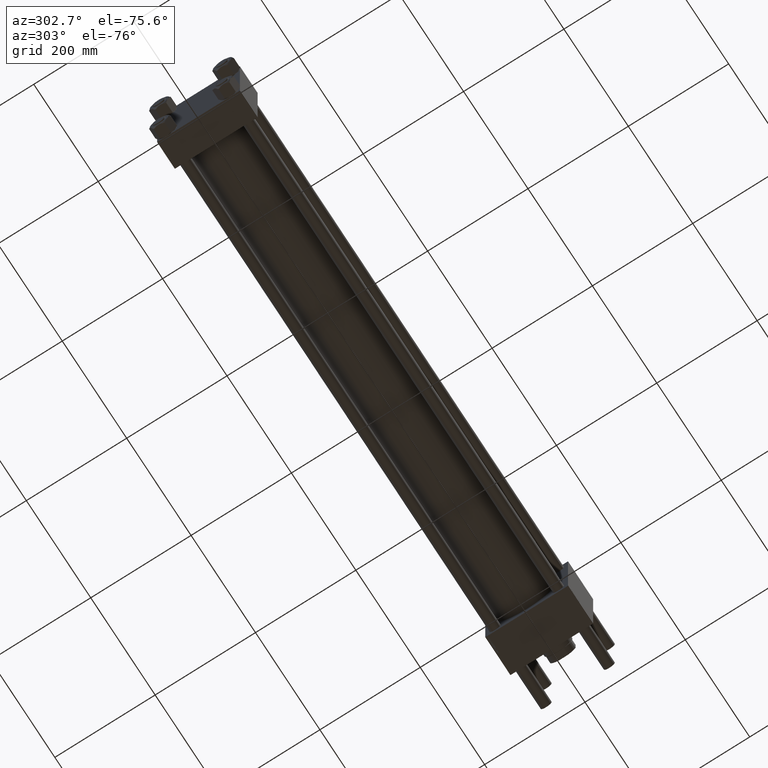
[diagram: clean part render]
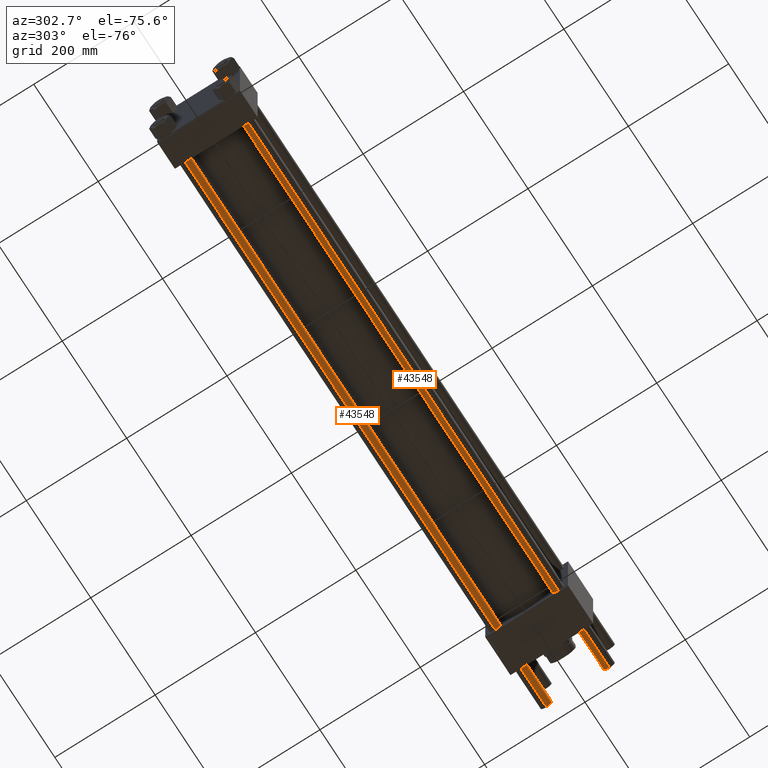
[diagram: same view with one multi-face feature highlighted, each face labeled with its STEP entity id]
A machine part, auxiliary view. The highlighted faces form ONE feature: a constant-radius fillet chain: 2 tangent blend faces with common blend radius 11 mm. The faces share edges in the B-rep.
Their STEP definitions:
[1] entity #43548 (Cylinder):
#1288 = EDGE_CURVE ( 'NONE', #33157, #26490, #50292, .T. ) ;
#2960 = CYLINDRICAL_SURFACE ( 'NONE', #44124, 11.00000000000000000 ) ;
#4113 = FACE_OUTER_BOUND ( 'NONE', #35522, .T. ) ;
#5757 = DIRECTION ( 'NONE',  ( -0.000000000000000000, -0.000000000000000000, -1.000000000000000000 ) ) ;
#6046 = EDGE_CURVE ( 'NONE', #6074, #27453, #24613, .T. ) ;
#6074 = VERTEX_POINT ( 'NONE', #12900 ) ;
#9520 = CARTESIAN_POINT ( 'NONE',  ( 11.00000000000000000, 1.347111479062088405E-15, 1204.000000000000000 ) ) ;
#12900 = CARTESIAN_POINT ( 'NONE',  ( -11.00000000000000000, 0.000000000000000000, 0.5000000000001669775 ) ) ;
#13047 = ORIENTED_EDGE ( 'NONE', *, *, #1288, .T. ) ;
#18404 = CARTESIAN_POINT ( 'NONE',  ( 0.000000000000000000, 0.000000000000000000, 0.5000000000001669775 ) ) ;
#21490 = DIRECTION ( 'NONE',  ( -1.000000000000000000, 0.000000000000000000, 0.000000000000000000 ) ) ;
#21594 = DIRECTION ( 'NONE',  ( 1.000000000000000000, 0.000000000000000000, 0.000000000000000000 ) ) ;
#24613 = CIRCLE ( 'NONE', #44927, 11.00000000000000000 ) ;
#26490 = VERTEX_POINT ( 'NONE', #47033 ) ;
#26971 = CARTESIAN_POINT ( 'NONE',  ( 11.00000000000000000, 1.347111479062088405E-15, 1203.499999999999545 ) ) ;
#27453 = VERTEX_POINT ( 'NONE', #31657 ) ;
#29598 = DIRECTION ( 'NONE',  ( -0.000000000000000000, -0.000000000000000000, -1.000000000000000000 ) ) ;
#30205 = ORIENTED_EDGE ( 'NONE', *, *, #37837, .T. ) ;
#31657 = CARTESIAN_POINT ( 'NONE',  ( 11.00000000000000000, 1.347111479062088405E-15, 0.5000000000001669775 ) ) ;
#33157 = VERTEX_POINT ( 'NONE', #26971 ) ;
#33489 = EDGE_CURVE ( 'NONE', #33157, #27453, #36451, .T. ) ;
#34799 = DIRECTION ( 'NONE',  ( 0.000000000000000000, 0.000000000000000000, -1.000000000000000000 ) ) ;
#35522 = EDGE_LOOP ( 'NONE', ( #56523, #13047, #30205, #36609 ) ) ;
#36451 = LINE ( 'NONE', #9520, #55077 ) ;
#36609 = ORIENTED_EDGE ( 'NONE', *, *, #6046, .T. ) ;
#37837 = EDGE_CURVE ( 'NONE', #26490, #6074, #52085, .T. ) ;
#41071 = AXIS2_PLACEMENT_3D ( 'NONE', #52724, #34799, #48934 ) ;
#43548 = ADVANCED_FACE ( 'NONE', ( #4113 ), #2960, .T. ) ;
#44124 = AXIS2_PLACEMENT_3D ( 'NONE', #47510, #29598, #21490 ) ;
#44927 = AXIS2_PLACEMENT_3D ( 'NONE', #18404, #49056, #21594 ) ;
#47033 = CARTESIAN_POINT ( 'NONE',  ( -11.00000000000000000, 0.000000000000000000, 1203.499999999999545 ) ) ;
#47510 = CARTESIAN_POINT ( 'NONE',  ( 0.000000000000000000, 0.000000000000000000, 1204.000000000000000 ) ) ;
#48017 = DIRECTION ( 'NONE',  ( -0.000000000000000000, -0.000000000000000000, -1.000000000000000000 ) ) ;
#48934 = DIRECTION ( 'NONE',  ( 1.000000000000000000, 0.000000000000000000, 0.000000000000000000 ) ) ;
#49056 = DIRECTION ( 'NONE',  ( -0.000000000000000000, -0.000000000000000000, 1.000000000000000000 ) ) ;
#50292 = CIRCLE ( 'NONE', #41071, 11.00000000000000000 ) ;
#51791 = CARTESIAN_POINT ( 'NONE',  ( -11.00000000000000000, 0.000000000000000000, 1204.000000000000000 ) ) ;
#52085 = LINE ( 'NONE', #51791, #53230 ) ;
#52724 = CARTESIAN_POINT ( 'NONE',  ( 0.000000000000000000, 0.000000000000000000, 1203.499999999999545 ) ) ;
#53230 = VECTOR ( 'NONE', #48017, 1000.000000000000000 ) ;
#55077 = VECTOR ( 'NONE', #5757, 1000.000000000000000 ) ;
#56523 = ORIENTED_EDGE ( 'NONE', *, *, #33489, .F. ) ;
[2] entity #43548 (Cylinder):
#1288 = EDGE_CURVE ( 'NONE', #33157, #26490, #50292, .T. ) ;
#2960 = CYLINDRICAL_SURFACE ( 'NONE', #44124, 11.00000000000000000 ) ;
#4113 = FACE_OUTER_BOUND ( 'NONE', #35522, .T. ) ;
#5757 = DIRECTION ( 'NONE',  ( -0.000000000000000000, -0.000000000000000000, -1.000000000000000000 ) ) ;
#6046 = EDGE_CURVE ( 'NONE', #6074, #27453, #24613, .T. ) ;
#6074 = VERTEX_POINT ( 'NONE', #12900 ) ;
#9520 = CARTESIAN_POINT ( 'NONE',  ( 11.00000000000000000, 1.347111479062088405E-15, 1204.000000000000000 ) ) ;
#12900 = CARTESIAN_POINT ( 'NONE',  ( -11.00000000000000000, 0.000000000000000000, 0.5000000000001669775 ) ) ;
#13047 = ORIENTED_EDGE ( 'NONE', *, *, #1288, .T. ) ;
#18404 = CARTESIAN_POINT ( 'NONE',  ( 0.000000000000000000, 0.000000000000000000, 0.5000000000001669775 ) ) ;
#21490 = DIRECTION ( 'NONE',  ( -1.000000000000000000, 0.000000000000000000, 0.000000000000000000 ) ) ;
#21594 = DIRECTION ( 'NONE',  ( 1.000000000000000000, 0.000000000000000000, 0.000000000000000000 ) ) ;
#24613 = CIRCLE ( 'NONE', #44927, 11.00000000000000000 ) ;
#26490 = VERTEX_POINT ( 'NONE', #47033 ) ;
#26971 = CARTESIAN_POINT ( 'NONE',  ( 11.00000000000000000, 1.347111479062088405E-15, 1203.499999999999545 ) ) ;
#27453 = VERTEX_POINT ( 'NONE', #31657 ) ;
#29598 = DIRECTION ( 'NONE',  ( -0.000000000000000000, -0.000000000000000000, -1.000000000000000000 ) ) ;
#30205 = ORIENTED_EDGE ( 'NONE', *, *, #37837, .T. ) ;
#31657 = CARTESIAN_POINT ( 'NONE',  ( 11.00000000000000000, 1.347111479062088405E-15, 0.5000000000001669775 ) ) ;
#33157 = VERTEX_POINT ( 'NONE', #26971 ) ;
#33489 = EDGE_CURVE ( 'NONE', #33157, #27453, #36451, .T. ) ;
#34799 = DIRECTION ( 'NONE',  ( 0.000000000000000000, 0.000000000000000000, -1.000000000000000000 ) ) ;
#35522 = EDGE_LOOP ( 'NONE', ( #56523, #13047, #30205, #36609 ) ) ;
#36451 = LINE ( 'NONE', #9520, #55077 ) ;
#36609 = ORIENTED_EDGE ( 'NONE', *, *, #6046, .T. ) ;
#37837 = EDGE_CURVE ( 'NONE', #26490, #6074, #52085, .T. ) ;
#41071 = AXIS2_PLACEMENT_3D ( 'NONE', #52724, #34799, #48934 ) ;
#43548 = ADVANCED_FACE ( 'NONE', ( #4113 ), #2960, .T. ) ;
#44124 = AXIS2_PLACEMENT_3D ( 'NONE', #47510, #29598, #21490 ) ;
#44927 = AXIS2_PLACEMENT_3D ( 'NONE', #18404, #49056, #21594 ) ;
#47033 = CARTESIAN_POINT ( 'NONE',  ( -11.00000000000000000, 0.000000000000000000, 1203.499999999999545 ) ) ;
#47510 = CARTESIAN_POINT ( 'NONE',  ( 0.000000000000000000, 0.000000000000000000, 1204.000000000000000 ) ) ;
#48017 = DIRECTION ( 'NONE',  ( -0.000000000000000000, -0.000000000000000000, -1.000000000000000000 ) ) ;
#48934 = DIRECTION ( 'NONE',  ( 1.000000000000000000, 0.000000000000000000, 0.000000000000000000 ) ) ;
#49056 = DIRECTION ( 'NONE',  ( -0.000000000000000000, -0.000000000000000000, 1.000000000000000000 ) ) ;
#50292 = CIRCLE ( 'NONE', #41071, 11.00000000000000000 ) ;
#51791 = CARTESIAN_POINT ( 'NONE',  ( -11.00000000000000000, 0.000000000000000000, 1204.000000000000000 ) ) ;
#52085 = LINE ( 'NONE', #51791, #53230 ) ;
#52724 = CARTESIAN_POINT ( 'NONE',  ( 0.000000000000000000, 0.000000000000000000, 1203.499999999999545 ) ) ;
#53230 = VECTOR ( 'NONE', #48017, 1000.000000000000000 ) ;
#55077 = VECTOR ( 'NONE', #5757, 1000.000000000000000 ) ;
#56523 = ORIENTED_EDGE ( 'NONE', *, *, #33489, .F. ) ;